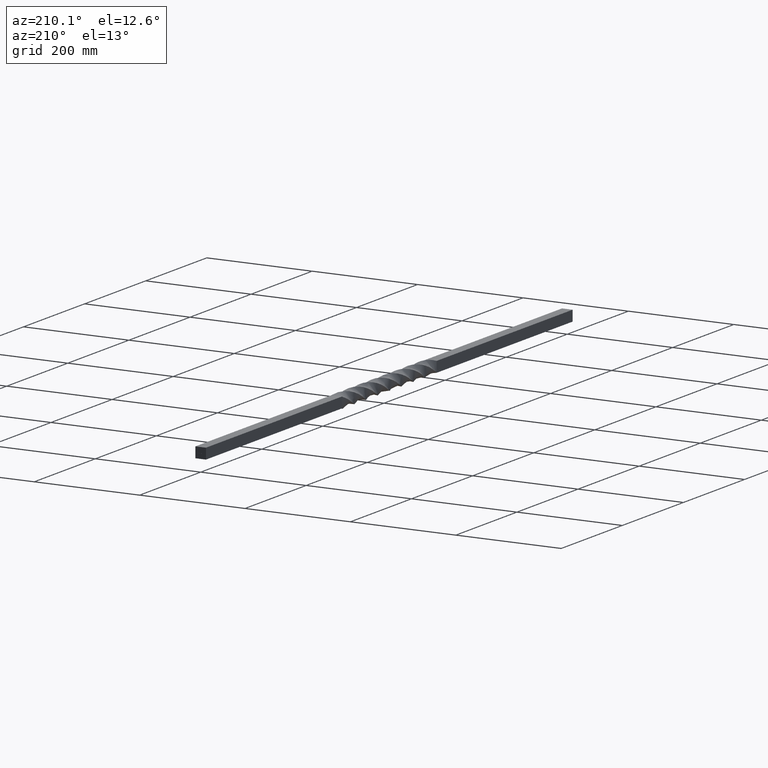
[diagram: clean part render]
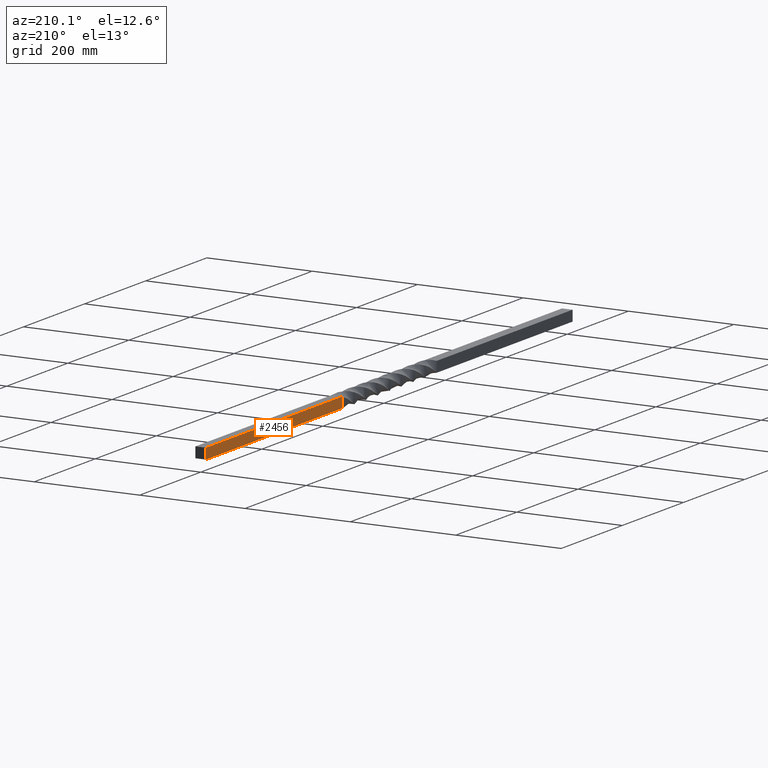
[diagram: same view with one face highlighted and labeled with its STEP entity id]
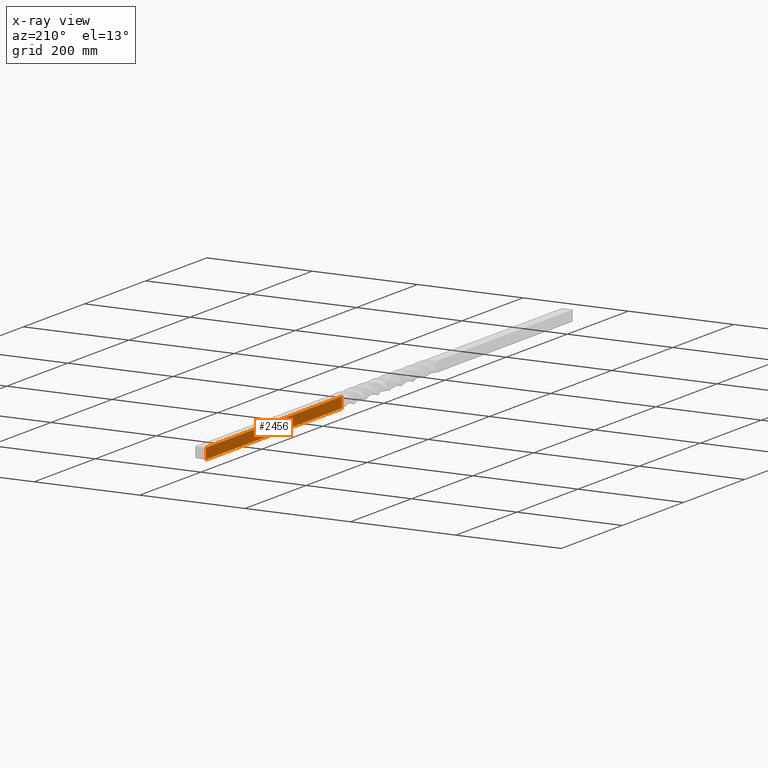
[diagram: x-ray of the same camera — body ghosted, the highlighted face saturated]
A machine part, auxiliary view. The second image highlights one B-rep face of the part: STEP entity #2456.
The next image is the same camera in x-ray: the body ghosted, the highlighted face saturated — about 0% of this face is hidden behind the body in this view.
In plain terms, the highlighted planar face has unit normal (1, 0, -0).
Its self-contained STEP definition (entity closure, byte-faithful):
#592 = CARTESIAN_POINT ( 'NONE',  ( -10.00000001116058534, 755.0000000274503691, -9.999999989882175200 ) ) ;
#1195 = CARTESIAN_POINT ( 'NONE',  ( -10.00000000000000355, 903.3333333333332575, -10.00000000000000178 ) ) ;
#1390 = CARTESIAN_POINT ( 'NONE',  ( -9.999999999999998224, 755.0000002499998573, 10.00000000000000178 ) ) ;
#1467 = B_SPLINE_CURVE_WITH_KNOTS ( 'NONE', 3,
 ( #8744, #2407, #3116, #1692 ),
 .UNSPECIFIED., .F., .F.,
 ( 4, 4 ),
 ( 0.000000000000000000, 0.9999999750000000409 ),
 .UNSPECIFIED. ) ;
#1692 = CARTESIAN_POINT ( 'NONE',  ( -9.999999999999998224, 1200.000000000000000, 9.999999833333335530 ) ) ;
#1699 = CARTESIAN_POINT ( 'NONE',  ( -10.00000000000000355, 754.9999999999998863, -10.00000000000000178 ) ) ;
#1950 = VERTEX_POINT ( 'NONE', #4079 ) ;
#2161 = CARTESIAN_POINT ( 'NONE',  ( -10.00000000000000355, 1200.000000000000000, -10.00000000000000178 ) ) ;
#2407 = CARTESIAN_POINT ( 'NONE',  ( -10.00000000000000178, 1200.000000000000000, -3.333333333333333925 ) ) ;
#2448 = CARTESIAN_POINT ( 'NONE',  ( -9.999999999999998224, 1200.000000000000000, 9.999999833333335530 ) ) ;
#2456 = ADVANCED_FACE ( 'NONE', ( #6524 ), #3504, .F. ) ;
#2830 = VERTEX_POINT ( 'NONE', #3940 ) ;
#3099 = EDGE_CURVE ( 'NONE', #5614, #1950, #5158, .T. ) ;
#3116 = CARTESIAN_POINT ( 'NONE',  ( -10.00000000000000000, 1200.000000000000000, 3.333333333333333925 ) ) ;
#3504 = PLANE ( 'NONE',  #3669 ) ;
#3624 = ORIENTED_EDGE ( 'NONE', *, *, #6009, .F. ) ;
#3669 = AXIS2_PLACEMENT_3D ( 'NONE', #2161, #7626, #9006 ) ;
#3940 = CARTESIAN_POINT ( 'NONE',  ( -10.00000001116058534, 755.0000000274503691, -9.999999989882175200 ) ) ;
#4079 = CARTESIAN_POINT ( 'NONE',  ( -9.999999999999998224, 755.0000002499998573, 10.00000000000000178 ) ) ;
#4293 = EDGE_LOOP ( 'NONE', ( #6496, #7426, #8961, #3624 ) ) ;
#4867 = LINE ( 'NONE', #1699, #6058 ) ;
#5158 = B_SPLINE_CURVE_WITH_KNOTS ( 'NONE', 3,
 ( #7580, #8931, #6823, #1390 ),
 .UNSPECIFIED., .F., .F.,
 ( 4, 4 ),
 ( 0.000000000000000000, 1.000000000000000000 ),
 .UNSPECIFIED. ) ;
#5227 = B_SPLINE_CURVE_WITH_KNOTS ( 'NONE', 3,
 ( #6668, #5893, #1195, #592 ),
 .UNSPECIFIED., .F., .F.,
 ( 4, 4 ),
 ( 0.000000000000000000, 1.000000000000000000 ),
 .UNSPECIFIED. ) ;
#5614 = VERTEX_POINT ( 'NONE', #2448 ) ;
#5674 = EDGE_CURVE ( 'NONE', #2830, #1950, #4867, .T. ) ;
#5893 = CARTESIAN_POINT ( 'NONE',  ( -10.00000000000000355, 1051.666666666666515, -10.00000000000000178 ) ) ;
#6009 = EDGE_CURVE ( 'NONE', #8237, #5614, #1467, .T. ) ;
#6058 = VECTOR ( 'NONE', #6577, 1000.000000000000000 ) ;
#6496 = ORIENTED_EDGE ( 'NONE', *, *, #8724, .T. ) ;
#6524 = FACE_OUTER_BOUND ( 'NONE', #4293, .T. ) ;
#6577 = DIRECTION ( 'NONE',  ( 2.602085213965210149E-16, -0.000000000000000000, 1.000000000000000000 ) ) ;
#6668 = CARTESIAN_POINT ( 'NONE',  ( -9.999999833333337307, 1200.000000000000000, -10.00000000000000178 ) ) ;
#6823 = CARTESIAN_POINT ( 'NONE',  ( -9.999999999999998224, 903.3333333333332575, 10.00000000000000178 ) ) ;
#7426 = ORIENTED_EDGE ( 'NONE', *, *, #5674, .T. ) ;
#7580 = CARTESIAN_POINT ( 'NONE',  ( -9.999999999999998224, 1200.000000000000000, 9.999999833333335530 ) ) ;
#7626 = DIRECTION ( 'NONE',  ( 1.000000000000000000, 0.000000000000000000, -2.602085213965210149E-16 ) ) ;
#8120 = CARTESIAN_POINT ( 'NONE',  ( -9.999999833333337307, 1200.000000000000000, -10.00000000000000178 ) ) ;
#8237 = VERTEX_POINT ( 'NONE', #8120 ) ;
#8724 = EDGE_CURVE ( 'NONE', #8237, #2830, #5227, .T. ) ;
#8744 = CARTESIAN_POINT ( 'NONE',  ( -9.999999833333337307, 1200.000000000000000, -10.00000000000000178 ) ) ;
#8931 = CARTESIAN_POINT ( 'NONE',  ( -9.999999999999998224, 1051.666666666666515, 10.00000000000000178 ) ) ;
#8961 = ORIENTED_EDGE ( 'NONE', *, *, #3099, .F. ) ;
#9006 = DIRECTION ( 'NONE',  ( -2.602085213965210149E-16, 0.000000000000000000, -1.000000000000000000 ) ) ;